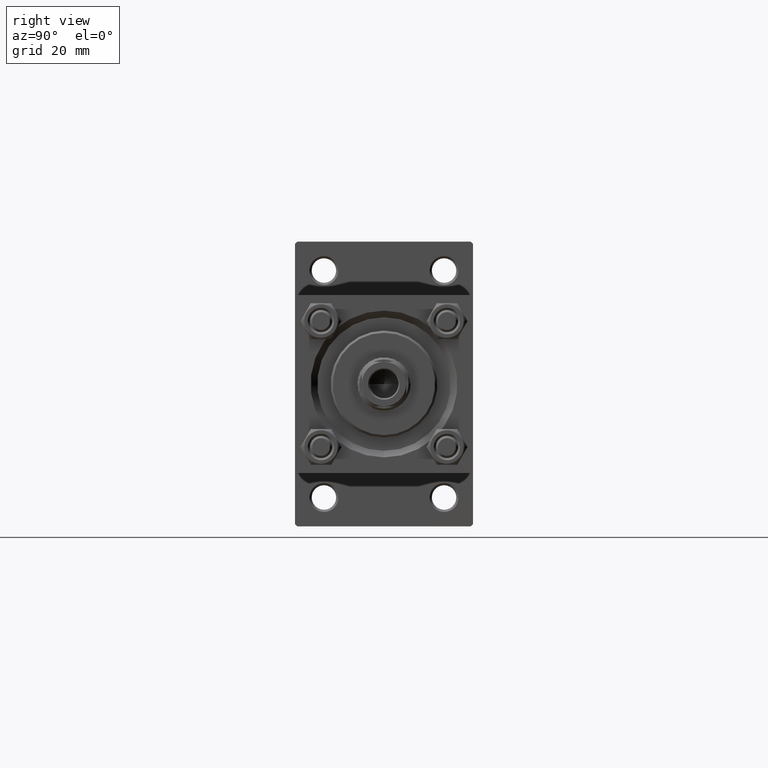
[diagram: clean part render]
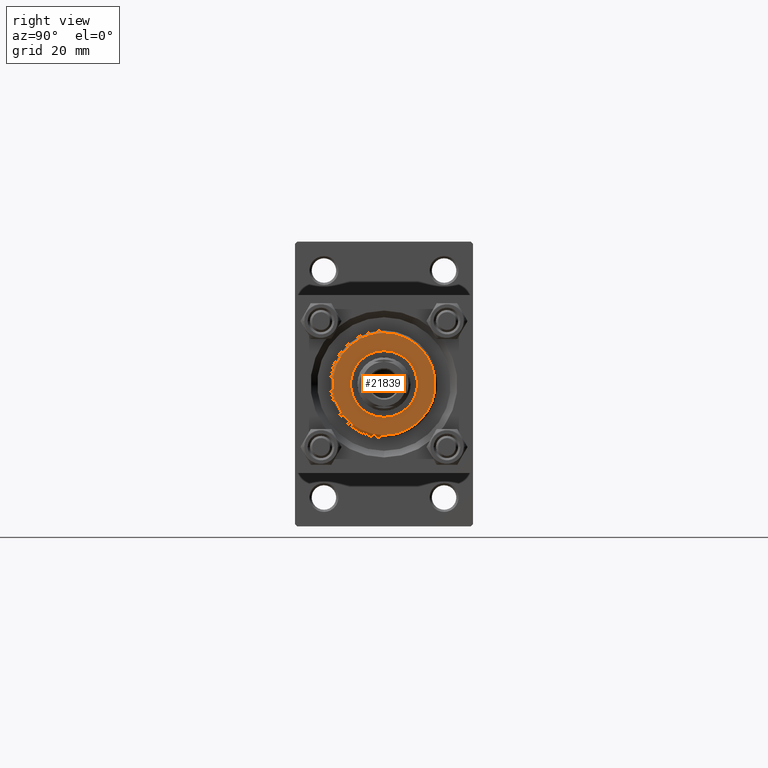
[diagram: same view with one face highlighted and labeled with its STEP entity id]
A machine part, right view. The second image highlights one B-rep face of the part: STEP entity #21839.
In plain terms, the highlighted planar face has unit normal (1, 0, 0).
Its self-contained STEP definition (entity closure, byte-faithful):
#163 = CARTESIAN_POINT ( 'NONE',  ( -7.500000000000000888, 9.184850993605149917E-16, 35.70000000000000284 ) ) ;
#961 = CIRCLE ( 'NONE', #5783, 11.49999999999999645 ) ;
#3230 = CARTESIAN_POINT ( 'NONE',  ( 0.000000000000000000, 0.000000000000000000, 35.70000000000000284 ) ) ;
#3287 = DIRECTION ( 'NONE',  ( 0.000000000000000000, 0.000000000000000000, 1.000000000000000000 ) ) ;
#3784 = DIRECTION ( 'NONE',  ( 1.000000000000000000, 0.000000000000000000, 0.000000000000000000 ) ) ;
#4910 = EDGE_CURVE ( 'NONE', #30313, #21034, #36305, .T. ) ;
#5699 = EDGE_CURVE ( 'NONE', #25578, #45636, #25821, .T. ) ;
#5783 = AXIS2_PLACEMENT_3D ( 'NONE', #22468, #3287, #3784 ) ;
#7319 = CARTESIAN_POINT ( 'NONE',  ( 0.000000000000000000, 0.000000000000000000, 35.70000000000000284 ) ) ;
#7514 = CIRCLE ( 'NONE', #13955, 7.500000000000000888 ) ;
#9390 = ORIENTED_EDGE ( 'NONE', *, *, #45511, .F. ) ;
#9951 = CARTESIAN_POINT ( 'NONE',  ( -11.49999999999999645, 0.000000000000000000, 35.70000000000000284 ) ) ;
#10461 = DIRECTION ( 'NONE',  ( 1.000000000000000000, 0.000000000000000000, -0.000000000000000000 ) ) ;
#11329 = AXIS2_PLACEMENT_3D ( 'NONE', #3230, #14588, #37319 ) ;
#13825 = CARTESIAN_POINT ( 'NONE',  ( 11.49999999999999645, 1.438959988998139963E-15, 35.70000000000000284 ) ) ;
#13955 = AXIS2_PLACEMENT_3D ( 'NONE', #35574, #15638, #23449 ) ;
#13998 = FACE_BOUND ( 'NONE', #19454, .T. ) ;
#14452 = EDGE_CURVE ( 'NONE', #45636, #25578, #961, .T. ) ;
#14588 = DIRECTION ( 'NONE',  ( 0.000000000000000000, 0.000000000000000000, 1.000000000000000000 ) ) ;
#15638 = DIRECTION ( 'NONE',  ( 0.000000000000000000, 0.000000000000000000, 1.000000000000000000 ) ) ;
#15676 = CARTESIAN_POINT ( 'NONE',  ( 7.500000000000000888, 0.000000000000000000, 35.70000000000000284 ) ) ;
#18043 = PLANE ( 'NONE',  #26248 ) ;
#18951 = DIRECTION ( 'NONE',  ( 1.000000000000000000, 0.000000000000000000, 0.000000000000000000 ) ) ;
#19454 = EDGE_LOOP ( 'NONE', ( #9390, #28602 ) ) ;
#21034 = VERTEX_POINT ( 'NONE', #15676 ) ;
#21839 = ADVANCED_FACE ( 'NONE', ( #13998, #26384 ), #18043, .T. ) ;
#22468 = CARTESIAN_POINT ( 'NONE',  ( 0.000000000000000000, 0.000000000000000000, 35.70000000000000284 ) ) ;
#23449 = DIRECTION ( 'NONE',  ( 1.000000000000000000, 0.000000000000000000, 0.000000000000000000 ) ) ;
#25578 = VERTEX_POINT ( 'NONE', #9951 ) ;
#25821 = CIRCLE ( 'NONE', #49213, 11.49999999999999645 ) ;
#26248 = AXIS2_PLACEMENT_3D ( 'NONE', #30171, #41774, #10461 ) ;
#26384 = FACE_OUTER_BOUND ( 'NONE', #37058, .T. ) ;
#28602 = ORIENTED_EDGE ( 'NONE', *, *, #4910, .F. ) ;
#30171 = CARTESIAN_POINT ( 'NONE',  ( 0.000000000000000000, 0.000000000000000000, 35.70000000000000284 ) ) ;
#30313 = VERTEX_POINT ( 'NONE', #163 ) ;
#35574 = CARTESIAN_POINT ( 'NONE',  ( 0.000000000000000000, 0.000000000000000000, 35.70000000000000284 ) ) ;
#36305 = CIRCLE ( 'NONE', #11329, 7.500000000000000888 ) ;
#37058 = EDGE_LOOP ( 'NONE', ( #49492, #37895 ) ) ;
#37319 = DIRECTION ( 'NONE',  ( 1.000000000000000000, 0.000000000000000000, 0.000000000000000000 ) ) ;
#37886 = DIRECTION ( 'NONE',  ( 0.000000000000000000, 0.000000000000000000, 1.000000000000000000 ) ) ;
#37895 = ORIENTED_EDGE ( 'NONE', *, *, #14452, .T. ) ;
#41774 = DIRECTION ( 'NONE',  ( 0.000000000000000000, 0.000000000000000000, 1.000000000000000000 ) ) ;
#45511 = EDGE_CURVE ( 'NONE', #21034, #30313, #7514, .T. ) ;
#45636 = VERTEX_POINT ( 'NONE', #13825 ) ;
#49213 = AXIS2_PLACEMENT_3D ( 'NONE', #7319, #37886, #18951 ) ;
#49492 = ORIENTED_EDGE ( 'NONE', *, *, #5699, .T. ) ;